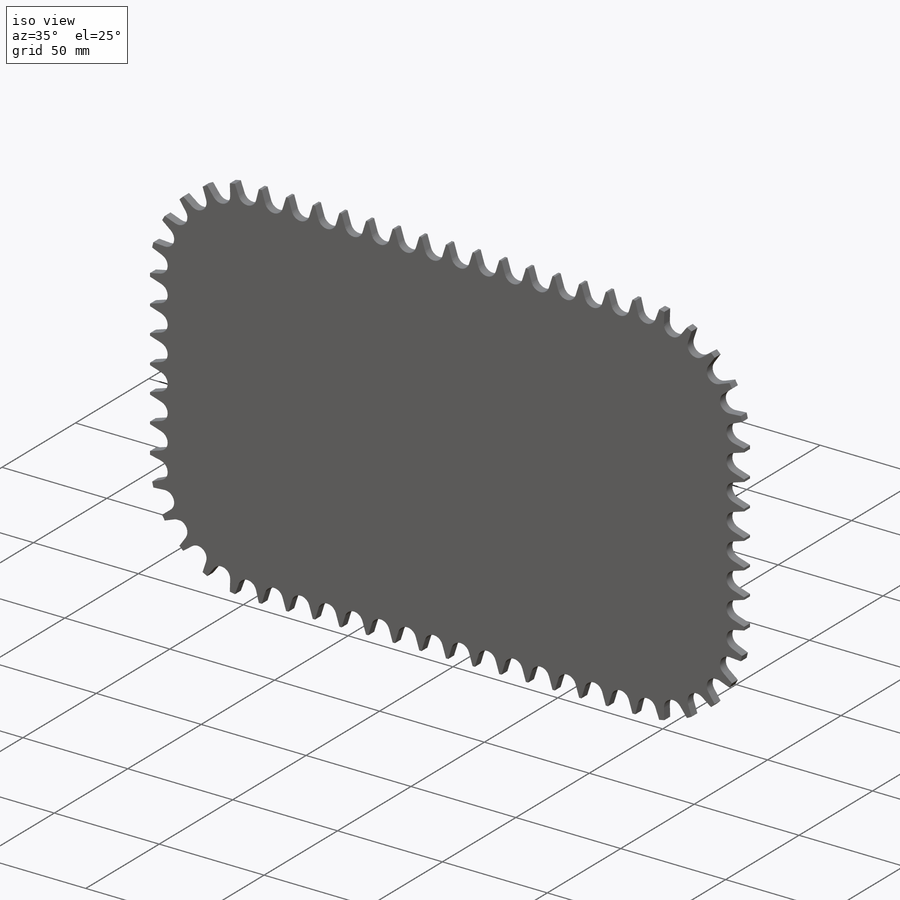
[diagram: iso view]
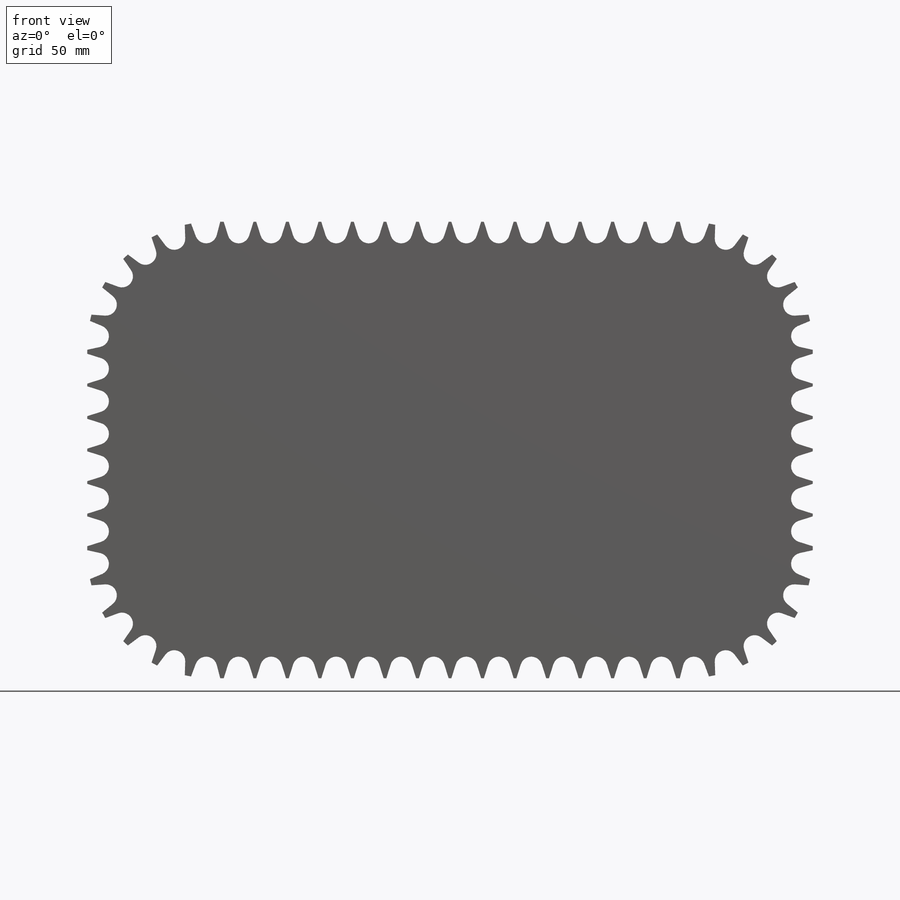
[diagram: front view]
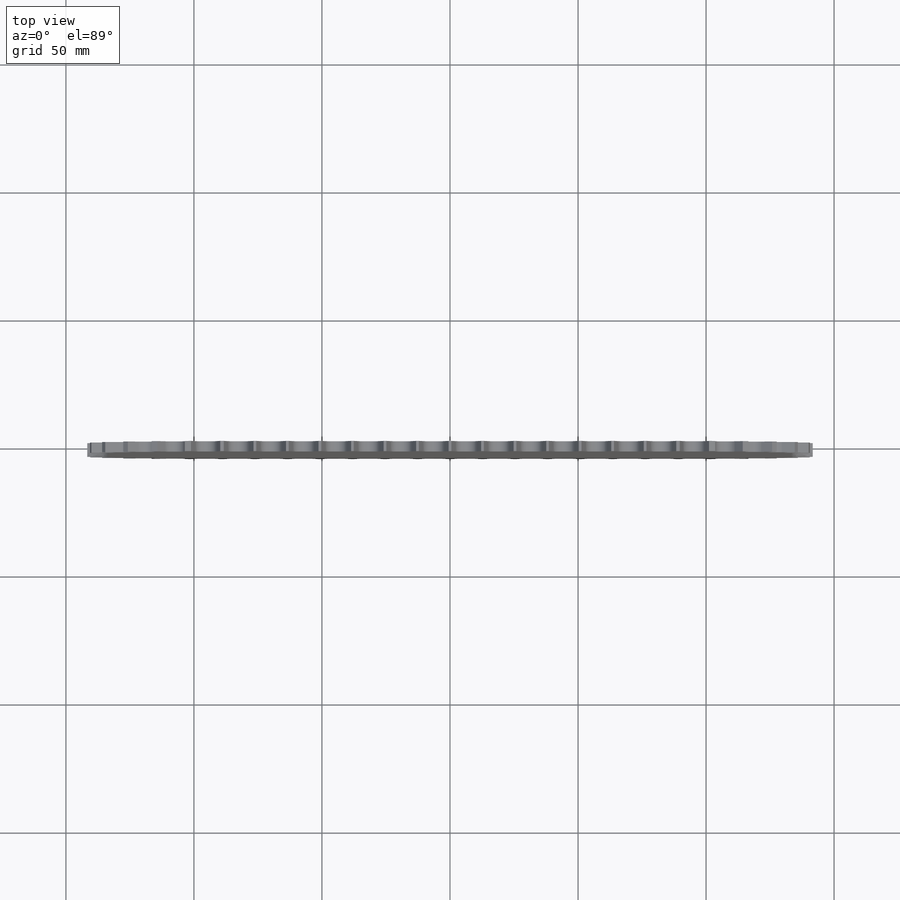
[diagram: top view]
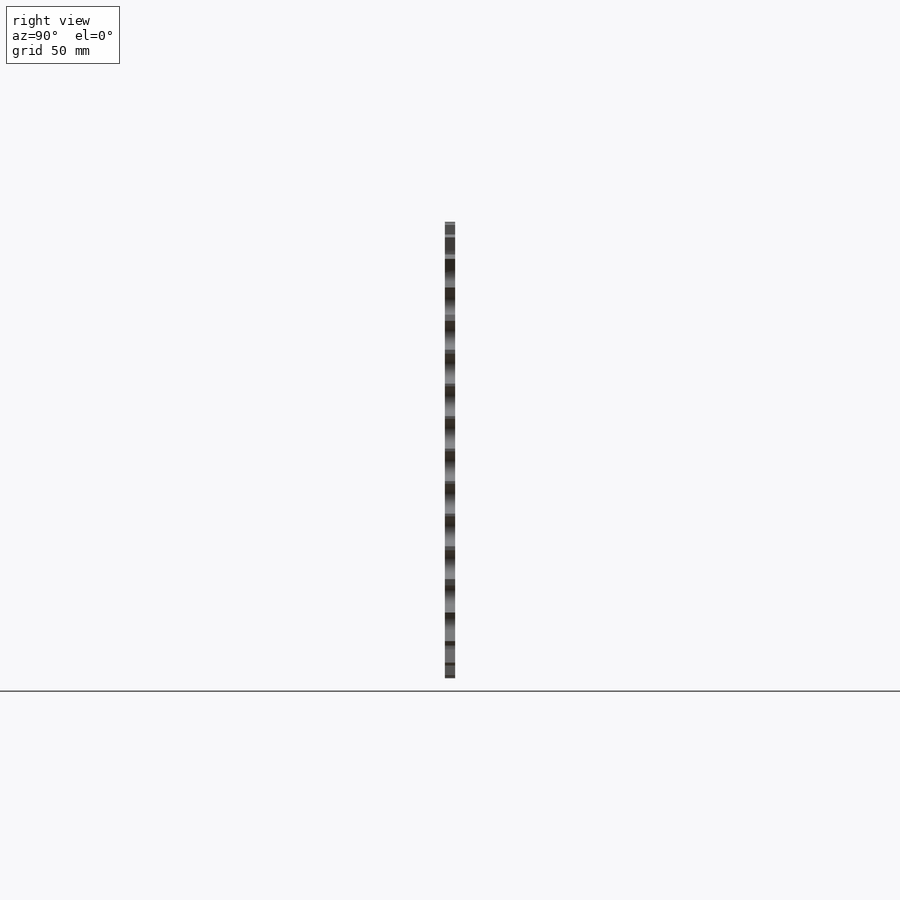
[diagram: right view]
SOLIDWORKS PART (.sldprt)
format: sldprt  version: not decoded by parser v0  size: 537,600 bytes
history: native  units: mm
features: extrude x16, sketch x4, plane x3, cut_extrude x2, mirror x2, material x1 (+10 scaffold rows collapsed)
feature tree (38):
  scaffold x10  (default folders/planes/origin — collapsed)
  material  "Material <nicht festgelegt>"
  plane  "Ebene vorne"
  plane  "Ebene oben"
  plane  "Ebene rechts"
  sketch  "Skizze1"  dims[D3=50.0mm D1=285.0mm D2=180.0mm]
  extrude  "Aufsatz-Linear austragen1"  Depth=4mm
  sketch  "Skizze2"  dims[D1=12.7mm D2=5.0mm D3=5.0mm]
  sketch  "Skizze3"  dims[D1=4.3mm D2=5.2mm D3=35.0deg]
  extrude  "Block1-2"  [1 undecoded]
  extrude  "Block1-3"  [1 undecoded]
  extrude  "Block1-4"  [1 undecoded]
  extrude  "Block1-5"  [1 undecoded]
  extrude  "Block1-6"  [1 undecoded]
  extrude  "Block1-7"  [1 undecoded]
  extrude  "Block1-8"  [1 undecoded]
  extrude  "Block1-9"  [1 undecoded]
  extrude  "Block1-10"  [1 undecoded]
  extrude  "Block1-11"  [1 undecoded]
  extrude  "Block1-12"  [1 undecoded]
  extrude  "Block1-13"  [1 undecoded]
  extrude  "Block1-14"  [1 undecoded]
  extrude  "Block1-15"  [1 undecoded]
  extrude  "Block1-16"  Depth=4.3mm
  cut_extrude  "Schnitt-Linear austragen1"  [1 undecoded]
  mirror  "Spiegeln1"
  mirror  "Spiegeln2"
  sketch  "Skizze4"  dims[c1.D3=~44.576698mm c1.D4=~48.716698mm c2.D3=48.72mm c2.D1=4.14mm c2.D2=4.14mm c3.D3=4.14mm]
  cut_extrude  "Schnitt-Linear austragen2"  [1 undecoded]
decode coverage: 6 of 24 modeling features carry decoded parameters
note: ~ marks probable driven/reference dimensions
note: 16 parameter values undecoded
summary: no parameter record found for 16 features
note: suppression state not decoded; provenance and decode notes live in map.json
